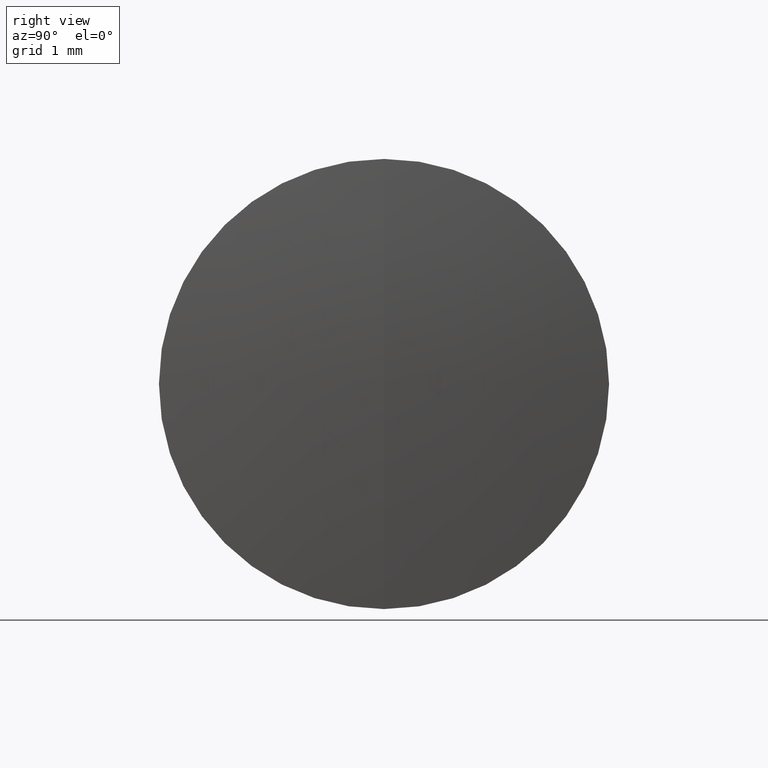
[diagram: clean part render]
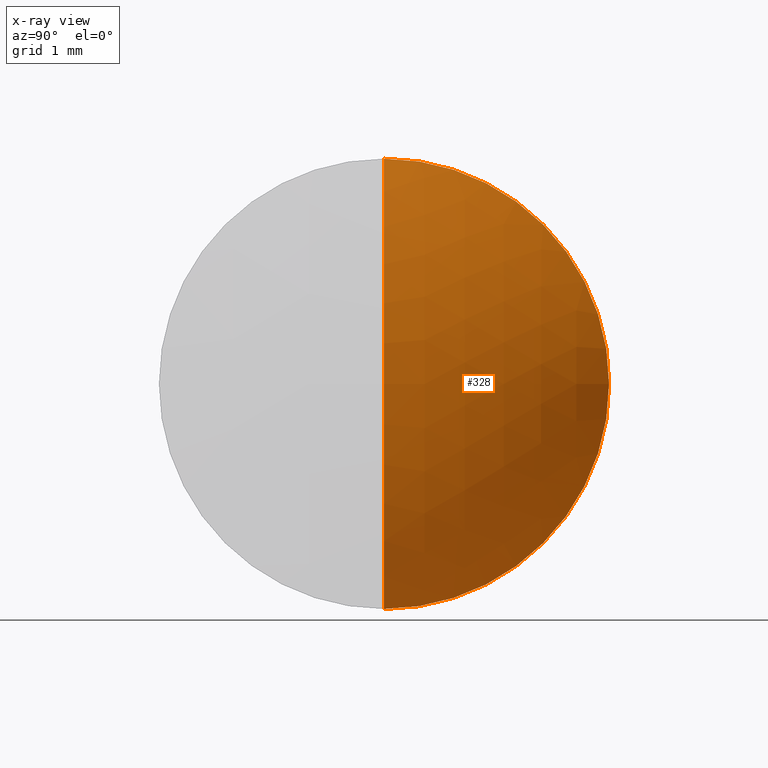
[diagram: x-ray — body ghosted, one internal face saturated and labeled with its STEP entity id]
A machine part, right view, then the same camera in x-ray: the body is ghosted and one INTERNAL B-rep face — a face not visible from any outside direction — is saturated and labeled: STEP entity #328.
In plain terms, the highlighted spherical surface has radius 3.9 mm.
Its self-contained STEP definition (entity closure, byte-faithful):
#6 = CARTESIAN_POINT ( 'NONE',  ( -1.513977515241453200, 0.0000000000000000000, 0.0000000000000000000 ) ) ;
#19 = DIRECTION ( 'NONE',  ( 0.0000000000000000000, 0.0000000000000000000, 1.000000000000000000 ) ) ;
#20 = EDGE_CURVE ( 'NONE', #81, #52, #217, .T. ) ;
#29 = DIRECTION ( 'NONE',  ( 0.0000000000000000000, 0.0000000000000000000, 1.000000000000000000 ) ) ;
#43 = SPHERICAL_SURFACE ( 'NONE', #159, 3.900000000000000800 ) ;
#52 = VERTEX_POINT ( 'NONE', #168 ) ;
#63 = CARTESIAN_POINT ( 'NONE',  ( 1.479348394177700100, 0.0000000000000000000, 2.500000000000000000 ) ) ;
#64 = VERTEX_POINT ( 'NONE', #63 ) ;
#68 = DIRECTION ( 'NONE',  ( 0.0000000000000000000, -1.000000000000000000, 0.0000000000000000000 ) ) ;
#72 = DIRECTION ( 'NONE',  ( 0.0000000000000000000, 0.0000000000000000000, -1.000000000000000000 ) ) ;
#73 = CIRCLE ( 'NONE', #102, 3.900000000000000800 ) ;
#81 = VERTEX_POINT ( 'NONE', #293 ) ;
#102 = AXIS2_PLACEMENT_3D ( 'NONE', #6, #68, #72 ) ;
#151 = CARTESIAN_POINT ( 'NONE',  ( -1.513977515241453200, 0.0000000000000000000, 0.0000000000000000000 ) ) ;
#154 = ORIENTED_EDGE ( 'NONE', *, *, #20, .T. ) ;
#159 = AXIS2_PLACEMENT_3D ( 'NONE', #151, #265, #29 ) ;
#165 = EDGE_LOOP ( 'NONE', ( #248, #154, #190 ) ) ;
#168 = CARTESIAN_POINT ( 'NONE',  ( 1.479348394177700100, 3.061616997868383100E-016, -2.500000000000000000 ) ) ;
#178 = FACE_OUTER_BOUND ( 'NONE', #165, .T. ) ;
#190 = ORIENTED_EDGE ( 'NONE', *, *, #214, .F. ) ;
#195 = EDGE_CURVE ( 'NONE', #81, #64, #73, .T. ) ;
#214 = EDGE_CURVE ( 'NONE', #64, #52, #300, .T. ) ;
#217 = CIRCLE ( 'NONE', #251, 3.900000000000000800 ) ;
#248 = ORIENTED_EDGE ( 'NONE', *, *, #195, .F. ) ;
#251 = AXIS2_PLACEMENT_3D ( 'NONE', #253, #284, #270 ) ;
#253 = CARTESIAN_POINT ( 'NONE',  ( -1.513977515241453200, 0.0000000000000000000, 0.0000000000000000000 ) ) ;
#256 = DIRECTION ( 'NONE',  ( -1.000000000000000000, -0.0000000000000000000, -0.0000000000000000000 ) ) ;
#265 = DIRECTION ( 'NONE',  ( 0.0000000000000000000, 1.000000000000000000, 0.0000000000000000000 ) ) ;
#266 = CARTESIAN_POINT ( 'NONE',  ( 1.479348394177700100, 0.0000000000000000000, 0.0000000000000000000 ) ) ;
#267 = AXIS2_PLACEMENT_3D ( 'NONE', #266, #256, #19 ) ;
#270 = DIRECTION ( 'NONE',  ( 0.0000000000000000000, -1.224646799147353200E-016, 1.000000000000000000 ) ) ;
#284 = DIRECTION ( 'NONE',  ( -0.0000000000000000000, 1.000000000000000000, 1.224646799147353200E-016 ) ) ;
#293 = CARTESIAN_POINT ( 'NONE',  ( 2.386022484758547200, 0.0000000000000000000, 2.388061258337339100E-016 ) ) ;
#300 = CIRCLE ( 'NONE', #267, 2.500000000000000000 ) ;
#328 = ADVANCED_FACE ( 'NONE', ( #178 ), #43, .T. ) ;